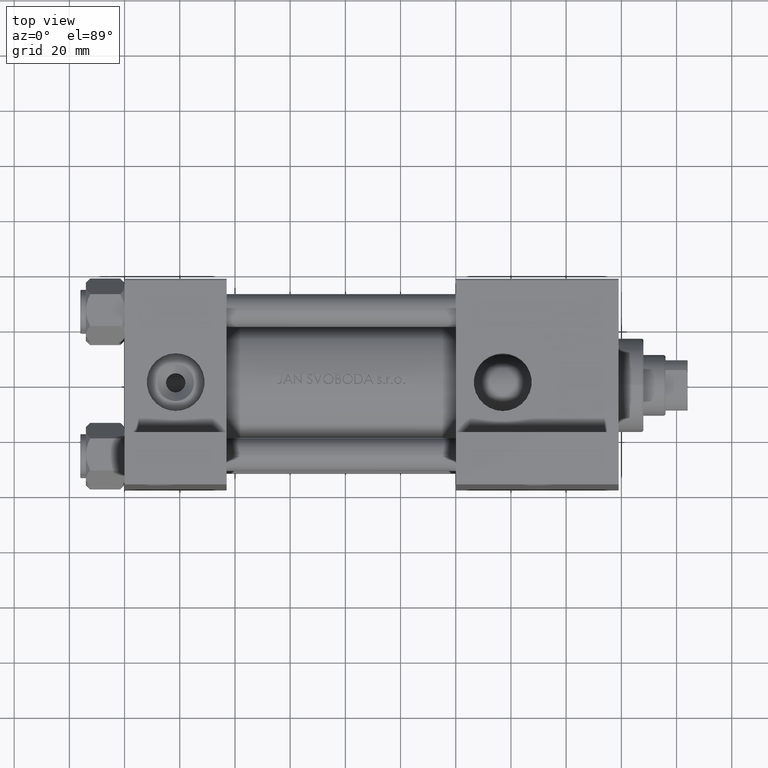
[diagram: clean part render]
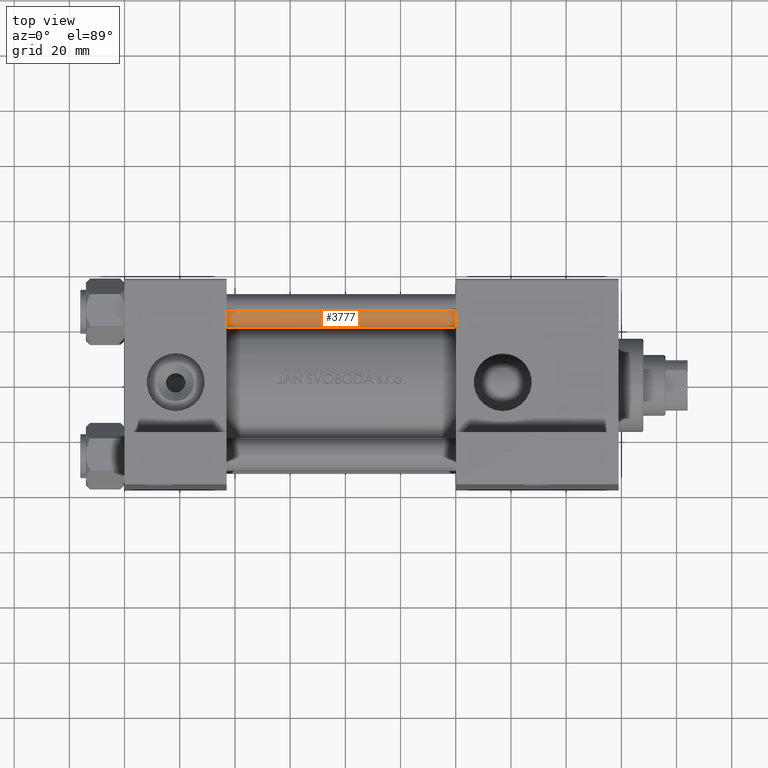
[diagram: same view with one face highlighted and labeled with its STEP entity id]
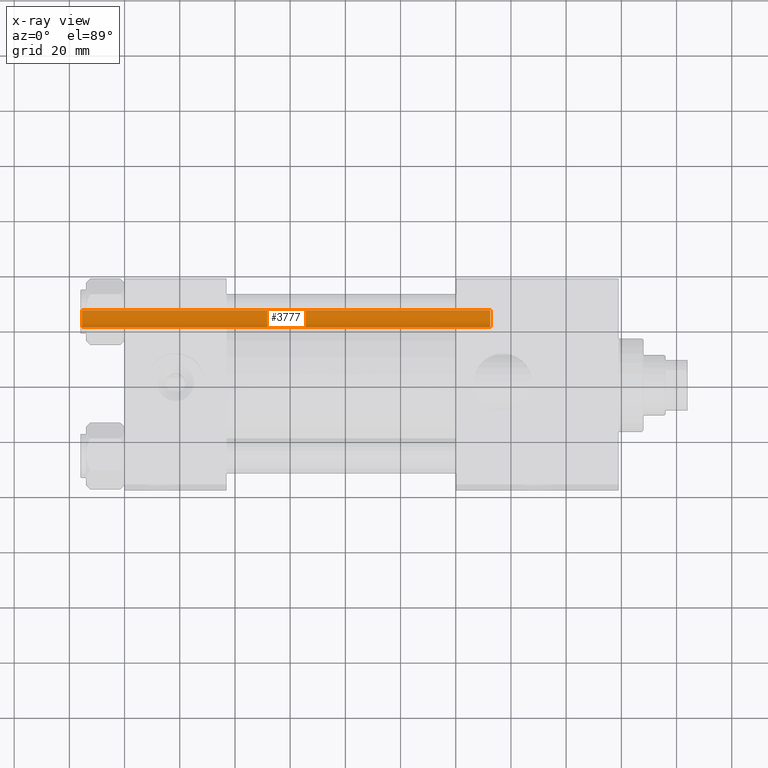
[diagram: x-ray of the same camera — body ghosted, the highlighted face saturated]
A machine part, top view. The second image highlights one B-rep face of the part: STEP entity #3777.
The next image is the same camera in x-ray: the body ghosted, the highlighted face saturated — about 0% of this face is hidden behind the body in this view.
In plain terms, the highlighted cylindrical surface (edge-blend (fillet) strip) has radius 6 mm, axis along (-1, -0, -0).
Its self-contained STEP definition (entity closure, byte-faithful):
#628 = EDGE_CURVE ( 'NONE', #18666, #28466, #14059, .T. ) ;
#2081 = DIRECTION ( 'NONE',  ( -1.000000000000000000, 0.000000000000000000, 0.000000000000000000 ) ) ;
#3539 = CARTESIAN_POINT ( 'NONE',  ( 6.000000000000000888, 7.347880794884120722E-16, 149.0000000000000000 ) ) ;
#3607 = CARTESIAN_POINT ( 'NONE',  ( -6.000000000000000888, 0.000000000000000000, 149.0000000000000000 ) ) ;
#3777 = ADVANCED_FACE ( 'NONE', ( #17286 ), #36714, .T. ) ;
#6108 = AXIS2_PLACEMENT_3D ( 'NONE', #34560, #18861, #15142 ) ;
#6554 = LINE ( 'NONE', #3539, #33699 ) ;
#6727 = ORIENTED_EDGE ( 'NONE', *, *, #628, .T. ) ;
#14059 = CIRCLE ( 'NONE', #42704, 6.000000000000000888 ) ;
#15142 = DIRECTION ( 'NONE',  ( 1.000000000000000000, 0.000000000000000000, 0.000000000000000000 ) ) ;
#15363 = DIRECTION ( 'NONE',  ( -0.000000000000000000, -0.000000000000000000, 1.000000000000000000 ) ) ;
#17286 = FACE_OUTER_BOUND ( 'NONE', #31958, .T. ) ;
#18251 = CARTESIAN_POINT ( 'NONE',  ( 0.000000000000000000, 0.000000000000000000, 149.0000000000000000 ) ) ;
#18666 = VERTEX_POINT ( 'NONE', #43429 ) ;
#18861 = DIRECTION ( 'NONE',  ( 0.000000000000000000, 0.000000000000000000, -1.000000000000000000 ) ) ;
#20244 = EDGE_CURVE ( 'NONE', #36666, #18666, #26767, .T. ) ;
#21005 = EDGE_CURVE ( 'NONE', #46620, #36666, #29941, .T. ) ;
#22055 = ORIENTED_EDGE ( 'NONE', *, *, #20244, .T. ) ;
#26222 = CARTESIAN_POINT ( 'NONE',  ( -6.000000000000000888, 0.000000000000000000, 148.5000000000000000 ) ) ;
#26223 = CARTESIAN_POINT ( 'NONE',  ( 6.000000000000000888, 7.347880794884120722E-16, 0.5000000000000281997 ) ) ;
#26767 = LINE ( 'NONE', #3607, #42679 ) ;
#28158 = CARTESIAN_POINT ( 'NONE',  ( 6.000000000000000888, 7.347880794884120722E-16, 148.5000000000000000 ) ) ;
#28466 = VERTEX_POINT ( 'NONE', #26223 ) ;
#29941 = CIRCLE ( 'NONE', #6108, 6.000000000000000888 ) ;
#31064 = CARTESIAN_POINT ( 'NONE',  ( 0.000000000000000000, 0.000000000000000000, 0.5000000000000281997 ) ) ;
#31223 = ORIENTED_EDGE ( 'NONE', *, *, #41692, .F. ) ;
#31958 = EDGE_LOOP ( 'NONE', ( #31223, #47998, #22055, #6727 ) ) ;
#33699 = VECTOR ( 'NONE', #36937, 1000.000000000000000 ) ;
#34560 = CARTESIAN_POINT ( 'NONE',  ( 0.000000000000000000, 0.000000000000000000, 148.5000000000000000 ) ) ;
#36666 = VERTEX_POINT ( 'NONE', #26222 ) ;
#36714 = CYLINDRICAL_SURFACE ( 'NONE', #43569, 6.000000000000000888 ) ;
#36937 = DIRECTION ( 'NONE',  ( -0.000000000000000000, -0.000000000000000000, -1.000000000000000000 ) ) ;
#37496 = DIRECTION ( 'NONE',  ( -0.000000000000000000, -0.000000000000000000, -1.000000000000000000 ) ) ;
#37537 = DIRECTION ( 'NONE',  ( 1.000000000000000000, 0.000000000000000000, 0.000000000000000000 ) ) ;
#40931 = DIRECTION ( 'NONE',  ( -0.000000000000000000, -0.000000000000000000, -1.000000000000000000 ) ) ;
#41692 = EDGE_CURVE ( 'NONE', #46620, #28466, #6554, .T. ) ;
#42679 = VECTOR ( 'NONE', #37496, 1000.000000000000000 ) ;
#42704 = AXIS2_PLACEMENT_3D ( 'NONE', #31064, #15363, #37537 ) ;
#43429 = CARTESIAN_POINT ( 'NONE',  ( -6.000000000000000888, 0.000000000000000000, 0.5000000000000281997 ) ) ;
#43569 = AXIS2_PLACEMENT_3D ( 'NONE', #18251, #40931, #2081 ) ;
#46620 = VERTEX_POINT ( 'NONE', #28158 ) ;
#47998 = ORIENTED_EDGE ( 'NONE', *, *, #21005, .T. ) ;